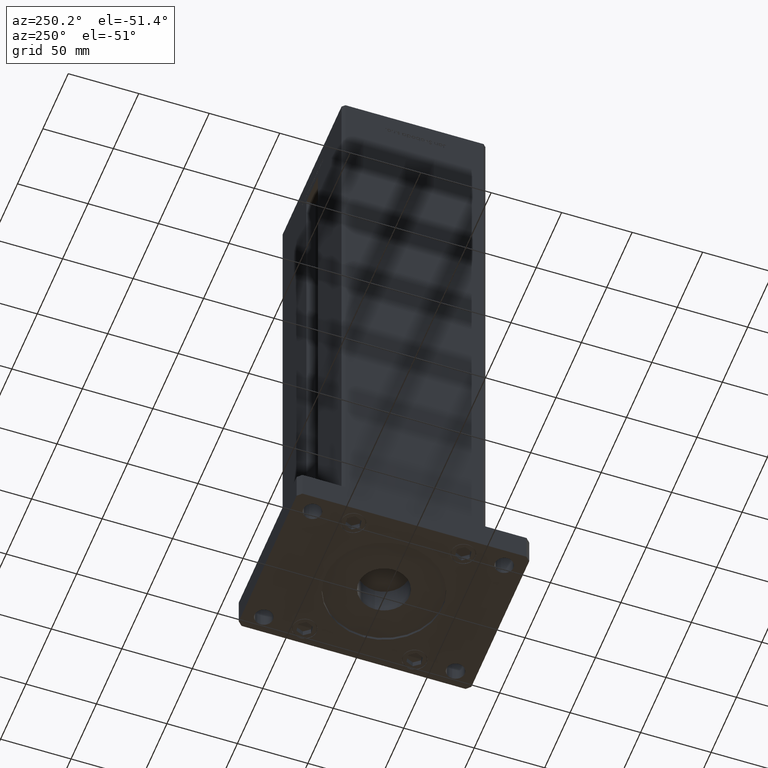
[diagram: clean part render]
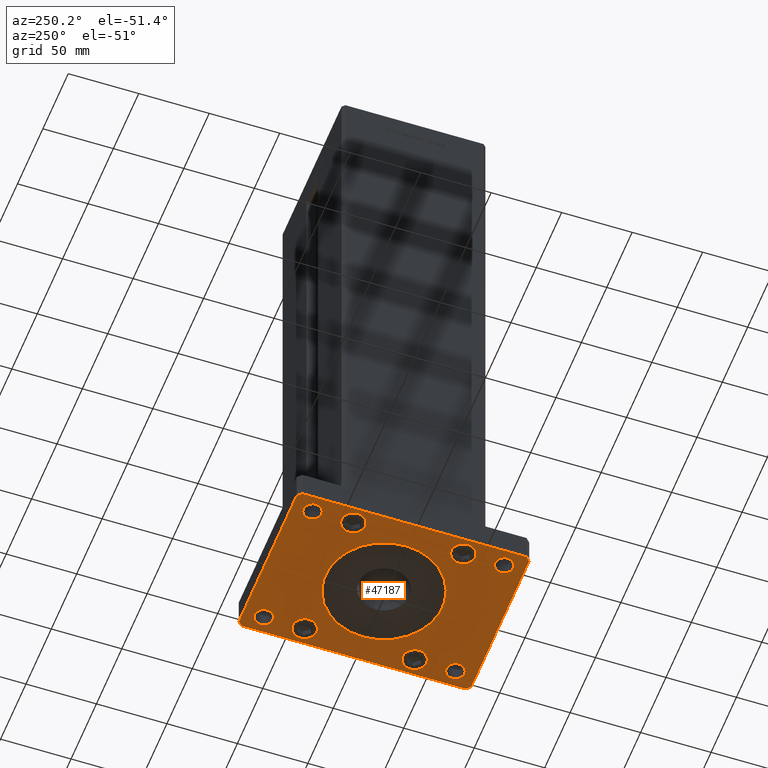
[diagram: same view with one face highlighted and labeled with its STEP entity id]
A machine part, auxiliary view. The second image highlights one B-rep face of the part: STEP entity #47187.
In plain terms, the highlighted planar face has unit normal (0, 0, 1).
Its self-contained STEP definition (entity closure, byte-faithful):
#348 = DIRECTION ( 'NONE',  ( 1.000000000000000000, 0.000000000000000000, 0.000000000000000000 ) ) ;
#434 = ORIENTED_EDGE ( 'NONE', *, *, #44533, .T. ) ;
#539 = DIRECTION ( 'NONE',  ( 1.000000000000000000, 0.000000000000000000, 0.000000000000000000 ) ) ;
#551 = DIRECTION ( 'NONE',  ( 1.000000000000000000, 0.000000000000000000, 0.000000000000000000 ) ) ;
#871 = DIRECTION ( 'NONE',  ( 1.000000000000000000, 0.000000000000000000, 0.000000000000000000 ) ) ;
#917 = VECTOR ( 'NONE', #52023, 1000.000000000000000 ) ;
#1344 = CARTESIAN_POINT ( 'NONE',  ( -48.00000000000001421, 39.00000000000000000, 0.000000000000000000 ) ) ;
#1539 = AXIS2_PLACEMENT_3D ( 'NONE', #8810, #12350, #20211 ) ;
#1962 = VERTEX_POINT ( 'NONE', #43745 ) ;
#2165 = DIRECTION ( 'NONE',  ( -1.000000000000000000, -2.434699615406043739E-16, 0.000000000000000000 ) ) ;
#2240 = EDGE_CURVE ( 'NONE', #16078, #29043, #19529, .T. ) ;
#2392 = CARTESIAN_POINT ( 'NONE',  ( -56.99999999999999289, -82.50000000000001421, 0.000000000000000000 ) ) ;
#2479 = DIRECTION ( 'NONE',  ( 4.364084216293856438E-17, 1.000000000000000000, 0.000000000000000000 ) ) ;
#2550 = CIRCLE ( 'NONE', #37197, 8.499999999999992895 ) ;
#2851 = EDGE_CURVE ( 'NONE', #21264, #35778, #42032, .T. ) ;
#2941 = DIRECTION ( 'NONE',  ( -1.000000000000000000, 0.000000000000000000, 0.000000000000000000 ) ) ;
#3126 = PLANE ( 'NONE',  #14649 ) ;
#3389 = CARTESIAN_POINT ( 'NONE',  ( 0.000000000000000000, 0.000000000000000000, 0.000000000000000000 ) ) ;
#3677 = EDGE_LOOP ( 'NONE', ( #22994, #10134 ) ) ;
#3722 = CARTESIAN_POINT ( 'NONE',  ( -57.00000000000003553, 82.50000000000000000, 0.000000000000000000 ) ) ;
#3892 = DIRECTION ( 'NONE',  ( 0.000000000000000000, 0.000000000000000000, 1.000000000000000000 ) ) ;
#4004 = CARTESIAN_POINT ( 'NONE',  ( -39.50000000000002132, 39.00000000000000000, 0.000000000000000000 ) ) ;
#4131 = DIRECTION ( 'NONE',  ( 0.000000000000000000, 0.000000000000000000, 1.000000000000000000 ) ) ;
#4392 = ORIENTED_EDGE ( 'NONE', *, *, #9780, .F. ) ;
#4715 = CARTESIAN_POINT ( 'NONE',  ( -57.00000000000003553, 82.50000000000000000, 0.000000000000000000 ) ) ;
#4840 = CARTESIAN_POINT ( 'NONE',  ( -56.99999999999999289, -82.50000000000001421, 0.000000000000000000 ) ) ;
#5300 = EDGE_LOOP ( 'NONE', ( #16347, #434 ) ) ;
#5668 = DIRECTION ( 'NONE',  ( 0.000000000000000000, 0.000000000000000000, 1.000000000000000000 ) ) ;
#5887 = AXIS2_PLACEMENT_3D ( 'NONE', #30151, #46701, #871 ) ;
#5900 = CARTESIAN_POINT ( 'NONE',  ( 48.00000000000000000, -38.99999999999999289, 0.000000000000000000 ) ) ;
#6570 = VERTEX_POINT ( 'NONE', #26928 ) ;
#6646 = AXIS2_PLACEMENT_3D ( 'NONE', #18380, #46844, #18648 ) ;
#7430 = DIRECTION ( 'NONE',  ( 0.000000000000000000, 0.000000000000000000, 1.000000000000000000 ) ) ;
#7679 = EDGE_LOOP ( 'NONE', ( #15815, #51520, #23581, #42692, #35691, #4392, #44912, #39769 ) ) ;
#8118 = VERTEX_POINT ( 'NONE', #3722 ) ;
#8313 = CIRCLE ( 'NONE', #42050, 6.500000000000005329 ) ;
#8810 = CARTESIAN_POINT ( 'NONE',  ( 47.99999999999997158, -68.00000000000001421, 0.000000000000000000 ) ) ;
#9588 = CARTESIAN_POINT ( 'NONE',  ( -54.50000000000000711, 68.00000000000001421, 0.000000000000000000 ) ) ;
#9622 = CARTESIAN_POINT ( 'NONE',  ( -48.00000000000000711, -39.00000000000000000, 0.000000000000000000 ) ) ;
#9671 = EDGE_CURVE ( 'NONE', #52883, #40839, #23933, .T. ) ;
#9742 = CARTESIAN_POINT ( 'NONE',  ( -47.99999999999997158, -68.00000000000001421, 0.000000000000000000 ) ) ;
#9780 = EDGE_CURVE ( 'NONE', #44068, #26260, #44169, .T. ) ;
#9991 = DIRECTION ( 'NONE',  ( 0.000000000000000000, 0.000000000000000000, 1.000000000000000000 ) ) ;
#10082 = LINE ( 'NONE', #17693, #16549 ) ;
#10134 = ORIENTED_EDGE ( 'NONE', *, *, #9671, .T. ) ;
#10559 = CIRCLE ( 'NONE', #42589, 8.500000000000000000 ) ;
#10610 = DIRECTION ( 'NONE',  ( 1.000000000000000000, 0.000000000000000000, 0.000000000000000000 ) ) ;
#10886 = DIRECTION ( 'NONE',  ( 0.000000000000000000, 0.000000000000000000, 1.000000000000000000 ) ) ;
#11149 = VERTEX_POINT ( 'NONE', #32979 ) ;
#11285 = CIRCLE ( 'NONE', #51090, 41.50000000000000000 ) ;
#11543 = FACE_BOUND ( 'NONE', #30374, .T. ) ;
#12233 = VERTEX_POINT ( 'NONE', #29486 ) ;
#12350 = DIRECTION ( 'NONE',  ( 0.000000000000000000, 0.000000000000000000, 1.000000000000000000 ) ) ;
#12631 = VECTOR ( 'NONE', #2165, 1000.000000000000000 ) ;
#12749 = AXIS2_PLACEMENT_3D ( 'NONE', #36438, #3892, #348 ) ;
#13105 = EDGE_CURVE ( 'NONE', #29043, #16078, #35297, .T. ) ;
#13506 = AXIS2_PLACEMENT_3D ( 'NONE', #47224, #10886, #10610 ) ;
#13546 = ORIENTED_EDGE ( 'NONE', *, *, #2851, .T. ) ;
#13780 = ORIENTED_EDGE ( 'NONE', *, *, #42748, .T. ) ;
#13831 = EDGE_CURVE ( 'NONE', #46605, #45318, #40530, .T. ) ;
#13866 = ORIENTED_EDGE ( 'NONE', *, *, #42519, .T. ) ;
#13870 = CIRCLE ( 'NONE', #44155, 6.500000000000005329 ) ;
#14509 = DIRECTION ( 'NONE',  ( 0.000000000000000000, 0.000000000000000000, 1.000000000000000000 ) ) ;
#14615 = CIRCLE ( 'NONE', #23227, 6.500000000000005329 ) ;
#14627 = CARTESIAN_POINT ( 'NONE',  ( -60.00000000000002842, 79.50000000000001421, 0.000000000000000000 ) ) ;
#14649 = AXIS2_PLACEMENT_3D ( 'NONE', #3389, #20485, #41062 ) ;
#14661 = EDGE_LOOP ( 'NONE', ( #13866, #13780 ) ) ;
#14775 = DIRECTION ( 'NONE',  ( 1.000000000000000000, 0.000000000000000000, 0.000000000000000000 ) ) ;
#15436 = AXIS2_PLACEMENT_3D ( 'NONE', #50435, #38219, #539 ) ;
#15744 = EDGE_CURVE ( 'NONE', #37050, #43836, #33599, .T. ) ;
#15815 = ORIENTED_EDGE ( 'NONE', *, *, #22687, .F. ) ;
#15949 = DIRECTION ( 'NONE',  ( 1.000000000000000000, 0.000000000000000000, 0.000000000000000000 ) ) ;
#16078 = VERTEX_POINT ( 'NONE', #45341 ) ;
#16211 = CARTESIAN_POINT ( 'NONE',  ( -56.50000000000000711, 39.00000000000000000, 0.000000000000000000 ) ) ;
#16347 = ORIENTED_EDGE ( 'NONE', *, *, #32922, .T. ) ;
#16549 = VECTOR ( 'NONE', #34206, 1000.000000000000114 ) ;
#17317 = EDGE_CURVE ( 'NONE', #43836, #37050, #14615, .T. ) ;
#17693 = CARTESIAN_POINT ( 'NONE',  ( 57.00000000000000711, -82.49999999999990052, 0.000000000000000000 ) ) ;
#17883 = CARTESIAN_POINT ( 'NONE',  ( -56.50000000000000711, -39.00000000000000000, 0.000000000000000000 ) ) ;
#17889 = DIRECTION ( 'NONE',  ( -1.000000000000000000, 0.000000000000000000, 0.000000000000000000 ) ) ;
#17894 = VECTOR ( 'NONE', #18983, 999.9999999999998863 ) ;
#18045 = CARTESIAN_POINT ( 'NONE',  ( 48.00000000000000000, -38.99999999999999289, 0.000000000000000000 ) ) ;
#18242 = VERTEX_POINT ( 'NONE', #41060 ) ;
#18380 = CARTESIAN_POINT ( 'NONE',  ( 48.00000000000000000, 67.99999999999998579, 0.000000000000000000 ) ) ;
#18561 = CARTESIAN_POINT ( 'NONE',  ( 57.00000000000002132, 82.50000000000002842, 0.000000000000000000 ) ) ;
#18648 = DIRECTION ( 'NONE',  ( 1.000000000000000000, 0.000000000000000000, 0.000000000000000000 ) ) ;
#18983 = DIRECTION ( 'NONE',  ( -0.7071067811865435759, 0.7071067811865515695, 0.000000000000000000 ) ) ;
#19069 = LINE ( 'NONE', #31505, #53162 ) ;
#19529 = CIRCLE ( 'NONE', #13506, 8.499999999999992895 ) ;
#20211 = DIRECTION ( 'NONE',  ( 1.000000000000000000, 0.000000000000000000, 0.000000000000000000 ) ) ;
#20482 = EDGE_LOOP ( 'NONE', ( #34980, #43907 ) ) ;
#20485 = DIRECTION ( 'NONE',  ( 0.000000000000000000, 0.000000000000000000, 1.000000000000000000 ) ) ;
#20790 = EDGE_LOOP ( 'NONE', ( #47172, #48799 ) ) ;
#20914 = EDGE_CURVE ( 'NONE', #40839, #52883, #2550, .T. ) ;
#21264 = VERTEX_POINT ( 'NONE', #17883 ) ;
#22025 = EDGE_CURVE ( 'NONE', #35715, #6570, #13870, .T. ) ;
#22031 = EDGE_CURVE ( 'NONE', #45550, #1962, #11285, .T. ) ;
#22479 = DIRECTION ( 'NONE',  ( 0.000000000000000000, 0.000000000000000000, -1.000000000000000000 ) ) ;
#22495 = CARTESIAN_POINT ( 'NONE',  ( 60.00000000000000711, 79.50000000000001421, 0.000000000000000000 ) ) ;
#22496 = CARTESIAN_POINT ( 'NONE',  ( 54.50000000000000711, 67.99999999999998579, 0.000000000000000000 ) ) ;
#22638 = EDGE_CURVE ( 'NONE', #23994, #18242, #30865, .T. ) ;
#22687 = EDGE_CURVE ( 'NONE', #37068, #12233, #35472, .T. ) ;
#22697 = DIRECTION ( 'NONE',  ( 1.000000000000000000, 0.000000000000000000, 0.000000000000000000 ) ) ;
#22994 = ORIENTED_EDGE ( 'NONE', *, *, #20914, .T. ) ;
#23061 = EDGE_CURVE ( 'NONE', #12233, #11149, #10082, .T. ) ;
#23227 = AXIS2_PLACEMENT_3D ( 'NONE', #36195, #35115, #43512 ) ;
#23556 = DIRECTION ( 'NONE',  ( 0.000000000000000000, 0.000000000000000000, -1.000000000000000000 ) ) ;
#23581 = ORIENTED_EDGE ( 'NONE', *, *, #22638, .F. ) ;
#23698 = CARTESIAN_POINT ( 'NONE',  ( 41.49999999999996447, -68.00000000000001421, 0.000000000000000000 ) ) ;
#23740 = FACE_BOUND ( 'NONE', #30432, .T. ) ;
#23931 = EDGE_LOOP ( 'NONE', ( #13546, #34912 ) ) ;
#23933 = CIRCLE ( 'NONE', #35179, 8.499999999999992895 ) ;
#23968 = DIRECTION ( 'NONE',  ( 1.000000000000000000, 0.000000000000000000, 0.000000000000000000 ) ) ;
#23994 = VERTEX_POINT ( 'NONE', #51914 ) ;
#24109 = CARTESIAN_POINT ( 'NONE',  ( 0.000000000000000000, 0.000000000000000000, 0.000000000000000000 ) ) ;
#24306 = EDGE_CURVE ( 'NONE', #1962, #45550, #27802, .T. ) ;
#24753 = AXIS2_PLACEMENT_3D ( 'NONE', #28562, #7430, #23968 ) ;
#25108 = ORIENTED_EDGE ( 'NONE', *, *, #13105, .T. ) ;
#25594 = LINE ( 'NONE', #4715, #46132 ) ;
#26260 = VERTEX_POINT ( 'NONE', #18561 ) ;
#26310 = EDGE_CURVE ( 'NONE', #35778, #21264, #10559, .T. ) ;
#26854 = LINE ( 'NONE', #35510, #12631 ) ;
#26928 = CARTESIAN_POINT ( 'NONE',  ( -54.49999999999997868, -68.00000000000001421, 0.000000000000000000 ) ) ;
#27353 = DIRECTION ( 'NONE',  ( 2.618450529776312260E-16, -1.000000000000000000, 0.000000000000000000 ) ) ;
#27802 = CIRCLE ( 'NONE', #46863, 41.50000000000000000 ) ;
#28562 = CARTESIAN_POINT ( 'NONE',  ( -48.00000000000000711, -39.00000000000000000, 0.000000000000000000 ) ) ;
#28864 = FACE_BOUND ( 'NONE', #49955, .T. ) ;
#29043 = VERTEX_POINT ( 'NONE', #53459 ) ;
#29486 = CARTESIAN_POINT ( 'NONE',  ( 57.00000000000000711, -82.49999999999990052, 0.000000000000000000 ) ) ;
#29845 = EDGE_CURVE ( 'NONE', #8118, #23994, #25594, .T. ) ;
#30151 = CARTESIAN_POINT ( 'NONE',  ( 48.00000000000000000, 67.99999999999998579, 0.000000000000000000 ) ) ;
#30374 = EDGE_LOOP ( 'NONE', ( #39384, #46329 ) ) ;
#30432 = EDGE_LOOP ( 'NONE', ( #33762, #38002 ) ) ;
#30435 = DIRECTION ( 'NONE',  ( -0.7071067811865474617, -0.7071067811865474617, 0.000000000000000000 ) ) ;
#30865 = LINE ( 'NONE', #14627, #44192 ) ;
#31505 = CARTESIAN_POINT ( 'NONE',  ( -59.99999999999998579, -79.50000000000002842, 0.000000000000000000 ) ) ;
#32053 = ORIENTED_EDGE ( 'NONE', *, *, #2240, .T. ) ;
#32130 = FACE_OUTER_BOUND ( 'NONE', #7679, .T. ) ;
#32567 = AXIS2_PLACEMENT_3D ( 'NONE', #18045, #42683, #50318 ) ;
#32922 = EDGE_CURVE ( 'NONE', #50655, #36529, #41742, .T. ) ;
#32979 = CARTESIAN_POINT ( 'NONE',  ( 60.00000000000000000, -79.49999999999990052, 0.000000000000000000 ) ) ;
#33192 = FACE_BOUND ( 'NONE', #20482, .T. ) ;
#33599 = CIRCLE ( 'NONE', #1539, 6.500000000000005329 ) ;
#33762 = ORIENTED_EDGE ( 'NONE', *, *, #44792, .T. ) ;
#34206 = DIRECTION ( 'NONE',  ( 0.7071067811865459074, 0.7071067811865491270, 0.000000000000000000 ) ) ;
#34671 = DIRECTION ( 'NONE',  ( 1.000000000000000000, 0.000000000000000000, 0.000000000000000000 ) ) ;
#34912 = ORIENTED_EDGE ( 'NONE', *, *, #26310, .T. ) ;
#34980 = ORIENTED_EDGE ( 'NONE', *, *, #13831, .T. ) ;
#35115 = DIRECTION ( 'NONE',  ( 0.000000000000000000, 0.000000000000000000, 1.000000000000000000 ) ) ;
#35179 = AXIS2_PLACEMENT_3D ( 'NONE', #1344, #37974, #551 ) ;
#35297 = CIRCLE ( 'NONE', #15436, 8.499999999999992895 ) ;
#35472 = LINE ( 'NONE', #2392, #917 ) ;
#35510 = CARTESIAN_POINT ( 'NONE',  ( 57.00000000000002132, 82.50000000000002842, 0.000000000000000000 ) ) ;
#35691 = ORIENTED_EDGE ( 'NONE', *, *, #41473, .F. ) ;
#35715 = VERTEX_POINT ( 'NONE', #45915 ) ;
#35766 = VERTEX_POINT ( 'NONE', #38828 ) ;
#35778 = VERTEX_POINT ( 'NONE', #38563 ) ;
#36195 = CARTESIAN_POINT ( 'NONE',  ( 47.99999999999997158, -68.00000000000001421, 0.000000000000000000 ) ) ;
#36428 = CARTESIAN_POINT ( 'NONE',  ( 60.00000000000000711, 79.50000000000001421, 0.000000000000000000 ) ) ;
#36438 = CARTESIAN_POINT ( 'NONE',  ( -47.99999999999997158, -68.00000000000001421, 0.000000000000000000 ) ) ;
#36529 = VERTEX_POINT ( 'NONE', #41905 ) ;
#37050 = VERTEX_POINT ( 'NONE', #45249 ) ;
#37068 = VERTEX_POINT ( 'NONE', #4840 ) ;
#37197 = AXIS2_PLACEMENT_3D ( 'NONE', #49961, #4131, #45067 ) ;
#37347 = CARTESIAN_POINT ( 'NONE',  ( -48.00000000000000000, 68.00000000000001421, 0.000000000000000000 ) ) ;
#37644 = VERTEX_POINT ( 'NONE', #9588 ) ;
#37765 = CIRCLE ( 'NONE', #45546, 6.500000000000005329 ) ;
#37858 = EDGE_CURVE ( 'NONE', #18242, #37068, #19069, .T. ) ;
#37974 = DIRECTION ( 'NONE',  ( 0.000000000000000000, 0.000000000000000000, 1.000000000000000000 ) ) ;
#38002 = ORIENTED_EDGE ( 'NONE', *, *, #22025, .T. ) ;
#38219 = DIRECTION ( 'NONE',  ( 0.000000000000000000, 0.000000000000000000, 1.000000000000000000 ) ) ;
#38563 = CARTESIAN_POINT ( 'NONE',  ( -39.50000000000000711, -39.00000000000000000, 0.000000000000000000 ) ) ;
#38689 = CIRCLE ( 'NONE', #12749, 6.500000000000005329 ) ;
#38827 = LINE ( 'NONE', #39085, #50621 ) ;
#38828 = CARTESIAN_POINT ( 'NONE',  ( -41.49999999999999289, 68.00000000000001421, 0.000000000000000000 ) ) ;
#38859 = CARTESIAN_POINT ( 'NONE',  ( 41.49999999999999289, 67.99999999999998579, 0.000000000000000000 ) ) ;
#38993 = DIRECTION ( 'NONE',  ( 1.000000000000000000, 0.000000000000000000, 0.000000000000000000 ) ) ;
#39085 = CARTESIAN_POINT ( 'NONE',  ( 60.00000000000000000, -79.49999999999990052, 0.000000000000000000 ) ) ;
#39384 = ORIENTED_EDGE ( 'NONE', *, *, #17317, .T. ) ;
#39505 = CARTESIAN_POINT ( 'NONE',  ( 39.50000000000000711, -38.99999999999999289, 0.000000000000000000 ) ) ;
#39769 = ORIENTED_EDGE ( 'NONE', *, *, #23061, .F. ) ;
#40269 = FACE_BOUND ( 'NONE', #23931, .T. ) ;
#40530 = CIRCLE ( 'NONE', #5887, 6.500000000000005329 ) ;
#40537 = FACE_BOUND ( 'NONE', #20790, .T. ) ;
#40839 = VERTEX_POINT ( 'NONE', #16211 ) ;
#41060 = CARTESIAN_POINT ( 'NONE',  ( -59.99999999999998579, -79.50000000000002842, 0.000000000000000000 ) ) ;
#41062 = DIRECTION ( 'NONE',  ( 1.000000000000000000, 0.000000000000000000, -0.000000000000000000 ) ) ;
#41473 = EDGE_CURVE ( 'NONE', #26260, #8118, #26854, .T. ) ;
#41742 = CIRCLE ( 'NONE', #46090, 8.499999999999992895 ) ;
#41905 = CARTESIAN_POINT ( 'NONE',  ( 56.49999999999999289, -38.99999999999999289, 0.000000000000000000 ) ) ;
#42032 = CIRCLE ( 'NONE', #24753, 8.500000000000000000 ) ;
#42050 = AXIS2_PLACEMENT_3D ( 'NONE', #51469, #9991, #38993 ) ;
#42519 = EDGE_CURVE ( 'NONE', #37644, #35766, #8313, .T. ) ;
#42589 = AXIS2_PLACEMENT_3D ( 'NONE', #9622, #14509, #14775 ) ;
#42683 = DIRECTION ( 'NONE',  ( 0.000000000000000000, 0.000000000000000000, 1.000000000000000000 ) ) ;
#42692 = ORIENTED_EDGE ( 'NONE', *, *, #29845, .F. ) ;
#42748 = EDGE_CURVE ( 'NONE', #35766, #37644, #37765, .T. ) ;
#43512 = DIRECTION ( 'NONE',  ( 1.000000000000000000, 0.000000000000000000, 0.000000000000000000 ) ) ;
#43745 = CARTESIAN_POINT ( 'NONE',  ( 41.50000000000000000, 5.082284216461515748E-15, 0.000000000000000000 ) ) ;
#43836 = VERTEX_POINT ( 'NONE', #23698 ) ;
#43907 = ORIENTED_EDGE ( 'NONE', *, *, #45545, .T. ) ;
#44068 = VERTEX_POINT ( 'NONE', #36428 ) ;
#44155 = AXIS2_PLACEMENT_3D ( 'NONE', #9742, #5668, #34671 ) ;
#44169 = LINE ( 'NONE', #22495, #17894 ) ;
#44192 = VECTOR ( 'NONE', #27353, 1000.000000000000000 ) ;
#44533 = EDGE_CURVE ( 'NONE', #36529, #50655, #49926, .T. ) ;
#44792 = EDGE_CURVE ( 'NONE', #6570, #35715, #38689, .T. ) ;
#44912 = ORIENTED_EDGE ( 'NONE', *, *, #49208, .F. ) ;
#45067 = DIRECTION ( 'NONE',  ( 1.000000000000000000, 0.000000000000000000, 0.000000000000000000 ) ) ;
#45136 = FACE_BOUND ( 'NONE', #3677, .T. ) ;
#45249 = CARTESIAN_POINT ( 'NONE',  ( 54.49999999999997868, -68.00000000000001421, 0.000000000000000000 ) ) ;
#45318 = VERTEX_POINT ( 'NONE', #22496 ) ;
#45341 = CARTESIAN_POINT ( 'NONE',  ( 56.49999999999999289, 38.99999999999999289, 0.000000000000000000 ) ) ;
#45545 = EDGE_CURVE ( 'NONE', #45318, #46605, #53400, .T. ) ;
#45546 = AXIS2_PLACEMENT_3D ( 'NONE', #37347, #53072, #15949 ) ;
#45550 = VERTEX_POINT ( 'NONE', #51443 ) ;
#45915 = CARTESIAN_POINT ( 'NONE',  ( -41.49999999999996447, -68.00000000000001421, 0.000000000000000000 ) ) ;
#46090 = AXIS2_PLACEMENT_3D ( 'NONE', #5900, #51178, #22697 ) ;
#46132 = VECTOR ( 'NONE', #30435, 1000.000000000000114 ) ;
#46329 = ORIENTED_EDGE ( 'NONE', *, *, #15744, .T. ) ;
#46605 = VERTEX_POINT ( 'NONE', #38859 ) ;
#46621 = CARTESIAN_POINT ( 'NONE',  ( 0.000000000000000000, 0.000000000000000000, 0.000000000000000000 ) ) ;
#46701 = DIRECTION ( 'NONE',  ( 0.000000000000000000, 0.000000000000000000, 1.000000000000000000 ) ) ;
#46844 = DIRECTION ( 'NONE',  ( 0.000000000000000000, 0.000000000000000000, 1.000000000000000000 ) ) ;
#46863 = AXIS2_PLACEMENT_3D ( 'NONE', #24109, #23556, #2941 ) ;
#47172 = ORIENTED_EDGE ( 'NONE', *, *, #22031, .F. ) ;
#47187 = ADVANCED_FACE ( 'NONE', ( #40537, #32130, #23740, #33192, #49753, #40269, #48686, #28864, #45136, #11543 ), #3126, .F. ) ;
#47224 = CARTESIAN_POINT ( 'NONE',  ( 48.00000000000000000, 38.99999999999999289, 0.000000000000000000 ) ) ;
#48063 = DIRECTION ( 'NONE',  ( 0.7071067811865474617, -0.7071067811865474617, 0.000000000000000000 ) ) ;
#48686 = FACE_BOUND ( 'NONE', #5300, .T. ) ;
#48799 = ORIENTED_EDGE ( 'NONE', *, *, #24306, .F. ) ;
#49208 = EDGE_CURVE ( 'NONE', #11149, #44068, #38827, .T. ) ;
#49753 = FACE_BOUND ( 'NONE', #14661, .T. ) ;
#49926 = CIRCLE ( 'NONE', #32567, 8.499999999999992895 ) ;
#49955 = EDGE_LOOP ( 'NONE', ( #25108, #32053 ) ) ;
#49961 = CARTESIAN_POINT ( 'NONE',  ( -48.00000000000001421, 39.00000000000000000, 0.000000000000000000 ) ) ;
#50318 = DIRECTION ( 'NONE',  ( 1.000000000000000000, 0.000000000000000000, 0.000000000000000000 ) ) ;
#50435 = CARTESIAN_POINT ( 'NONE',  ( 48.00000000000000000, 38.99999999999999289, 0.000000000000000000 ) ) ;
#50621 = VECTOR ( 'NONE', #2479, 1000.000000000000000 ) ;
#50655 = VERTEX_POINT ( 'NONE', #39505 ) ;
#51090 = AXIS2_PLACEMENT_3D ( 'NONE', #46621, #22479, #17889 ) ;
#51178 = DIRECTION ( 'NONE',  ( 0.000000000000000000, 0.000000000000000000, 1.000000000000000000 ) ) ;
#51443 = CARTESIAN_POINT ( 'NONE',  ( -41.50000000000000000, 0.000000000000000000, 0.000000000000000000 ) ) ;
#51469 = CARTESIAN_POINT ( 'NONE',  ( -48.00000000000000000, 68.00000000000001421, 0.000000000000000000 ) ) ;
#51520 = ORIENTED_EDGE ( 'NONE', *, *, #37858, .F. ) ;
#51914 = CARTESIAN_POINT ( 'NONE',  ( -60.00000000000002842, 79.50000000000001421, 0.000000000000000000 ) ) ;
#52023 = DIRECTION ( 'NONE',  ( 1.000000000000000000, 9.738798461624180871E-16, 0.000000000000000000 ) ) ;
#52883 = VERTEX_POINT ( 'NONE', #4004 ) ;
#53072 = DIRECTION ( 'NONE',  ( 0.000000000000000000, 0.000000000000000000, 1.000000000000000000 ) ) ;
#53162 = VECTOR ( 'NONE', #48063, 1000.000000000000114 ) ;
#53400 = CIRCLE ( 'NONE', #6646, 6.500000000000005329 ) ;
#53459 = CARTESIAN_POINT ( 'NONE',  ( 39.50000000000000711, 38.99999999999999289, 0.000000000000000000 ) ) ;